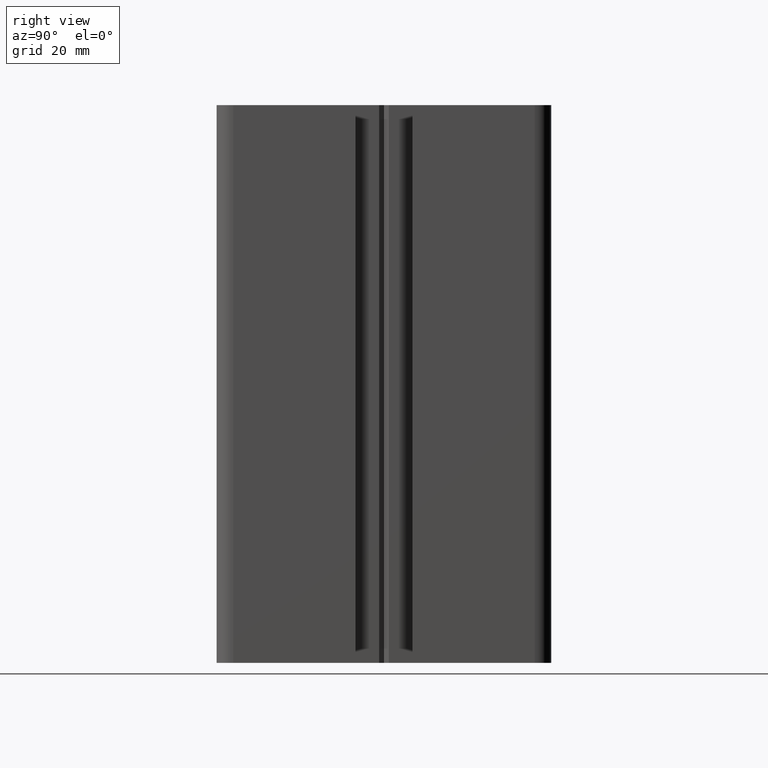
[diagram: clean part render]
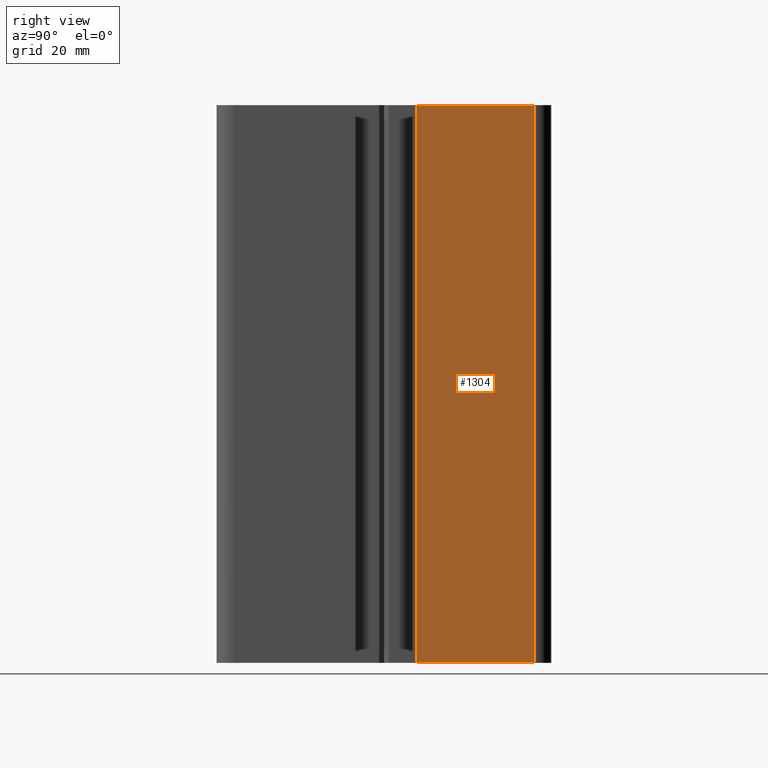
[diagram: same view with one face highlighted and labeled with its STEP entity id]
A machine part, right view. The second image highlights one B-rep face of the part: STEP entity #1304.
In plain terms, the highlighted planar face has unit normal (-1, 0, 0).
Its self-contained STEP definition (entity closure, byte-faithful):
#541 = EDGE_CURVE ( 'NONE', #564, #560, #2651, .T. ) ;
#560 = VERTEX_POINT ( 'NONE', #2731 ) ;
#564 = VERTEX_POINT ( 'NONE', #2723 ) ;
#1083 = VERTEX_POINT ( 'NONE', #3642 ) ;
#1134 = EDGE_CURVE ( 'NONE', #1177, #1083, #5383, .T. ) ;
#1177 = VERTEX_POINT ( 'NONE', #5443 ) ;
#1262 = EDGE_CURVE ( 'NONE', #564, #1177, #5581, .T. ) ;
#1302 = EDGE_CURVE ( 'NONE', #560, #1083, #5638, .T. ) ;
#1303 = ORIENTED_EDGE ( 'NONE', *, *, #1302, .F. ) ;
#1304 = ADVANCED_FACE ( 'NONE', ( #5644 ), #5623, .F. ) ;
#1305 = ORIENTED_EDGE ( 'NONE', *, *, #1134, .T. ) ;
#1319 = EDGE_LOOP ( 'NONE', ( #1305, #1303, #1342, #1340 ) ) ;
#1340 = ORIENTED_EDGE ( 'NONE', *, *, #1262, .T. ) ;
#1342 = ORIENTED_EDGE ( 'NONE', *, *, #541, .F. ) ;
#2651 = LINE ( 'NONE', #2704, #2703 ) ;
#2702 = DIRECTION ( 'NONE',  ( 0.0000000000000000000, 1.000000000000000000, 0.0000000000000000000 ) ) ;
#2703 = VECTOR ( 'NONE', #2702, 1000.000000000000000 ) ;
#2704 = CARTESIAN_POINT ( 'NONE',  ( 30.00000000000000000, 5.900000000000001200, 100.0000000000000000 ) ) ;
#2723 = CARTESIAN_POINT ( 'NONE',  ( 30.00000000000000000, 5.900000000000001200, 100.0000000000000000 ) ) ;
#2731 = CARTESIAN_POINT ( 'NONE',  ( 30.00000000000000000, 27.00000000000000000, 100.0000000000000000 ) ) ;
#3642 = CARTESIAN_POINT ( 'NONE',  ( 30.00000000000000000, 27.00000000000000000, 0.0000000000000000000 ) ) ;
#5369 = DIRECTION ( 'NONE',  ( 0.0000000000000000000, 1.000000000000000000, 0.0000000000000000000 ) ) ;
#5370 = VECTOR ( 'NONE', #5369, 1000.000000000000000 ) ;
#5383 = LINE ( 'NONE', #5389, #5370 ) ;
#5389 = CARTESIAN_POINT ( 'NONE',  ( 30.00000000000000000, 5.900000000000001200, 0.0000000000000000000 ) ) ;
#5443 = CARTESIAN_POINT ( 'NONE',  ( 30.00000000000000000, 5.900000000000001200, 0.0000000000000000000 ) ) ;
#5580 = CARTESIAN_POINT ( 'NONE',  ( 30.00000000000000000, 5.900000000000001200, 100.0000000000000000 ) ) ;
#5581 = LINE ( 'NONE', #5580, #5636 ) ;
#5623 = PLANE ( 'NONE',  #5684 ) ;
#5635 = DIRECTION ( 'NONE',  ( -0.0000000000000000000, -0.0000000000000000000, -1.000000000000000000 ) ) ;
#5636 = VECTOR ( 'NONE', #5635, 1000.000000000000000 ) ;
#5638 = LINE ( 'NONE', #5687, #5686 ) ;
#5643 = CARTESIAN_POINT ( 'NONE',  ( 30.00000000000000000, 5.900000000000001200, 100.0000000000000000 ) ) ;
#5644 = FACE_OUTER_BOUND ( 'NONE', #1319, .T. ) ;
#5681 = DIRECTION ( 'NONE',  ( 0.0000000000000000000, 0.0000000000000000000, 1.000000000000000000 ) ) ;
#5682 = DIRECTION ( 'NONE',  ( -1.000000000000000000, 0.0000000000000000000, 0.0000000000000000000 ) ) ;
#5684 = AXIS2_PLACEMENT_3D ( 'NONE', #5643, #5682, #5681 ) ;
#5685 = DIRECTION ( 'NONE',  ( -0.0000000000000000000, -0.0000000000000000000, -1.000000000000000000 ) ) ;
#5686 = VECTOR ( 'NONE', #5685, 1000.000000000000000 ) ;
#5687 = CARTESIAN_POINT ( 'NONE',  ( 30.00000000000000000, 27.00000000000000000, 100.0000000000000000 ) ) ;